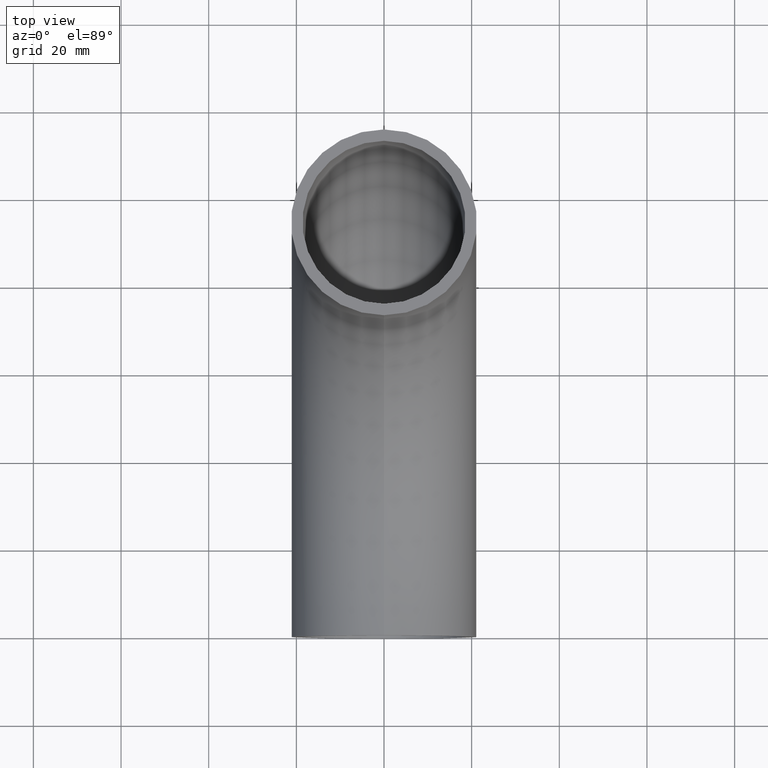
[diagram: clean part render]
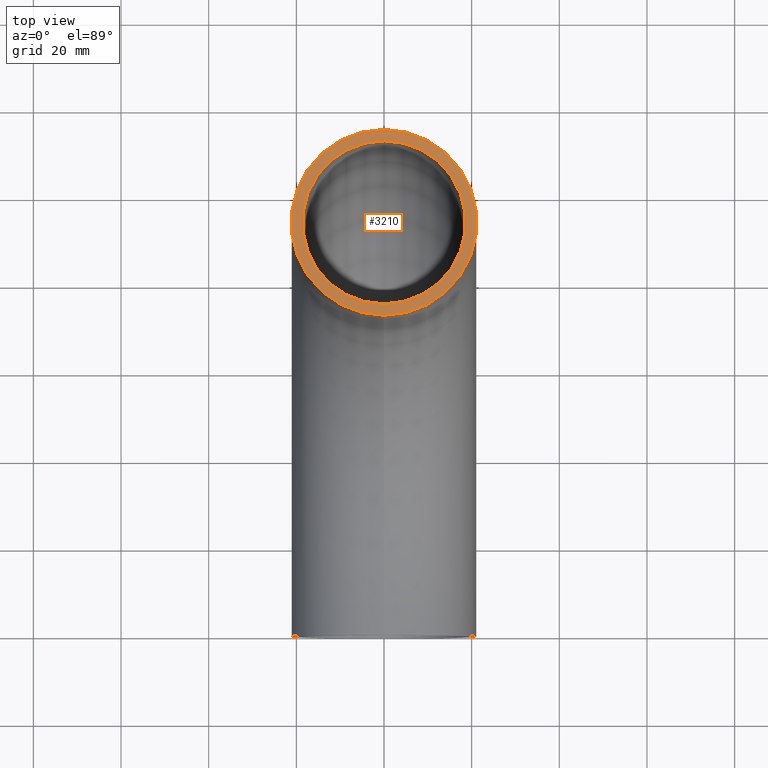
[diagram: same view with one face highlighted and labeled with its STEP entity id]
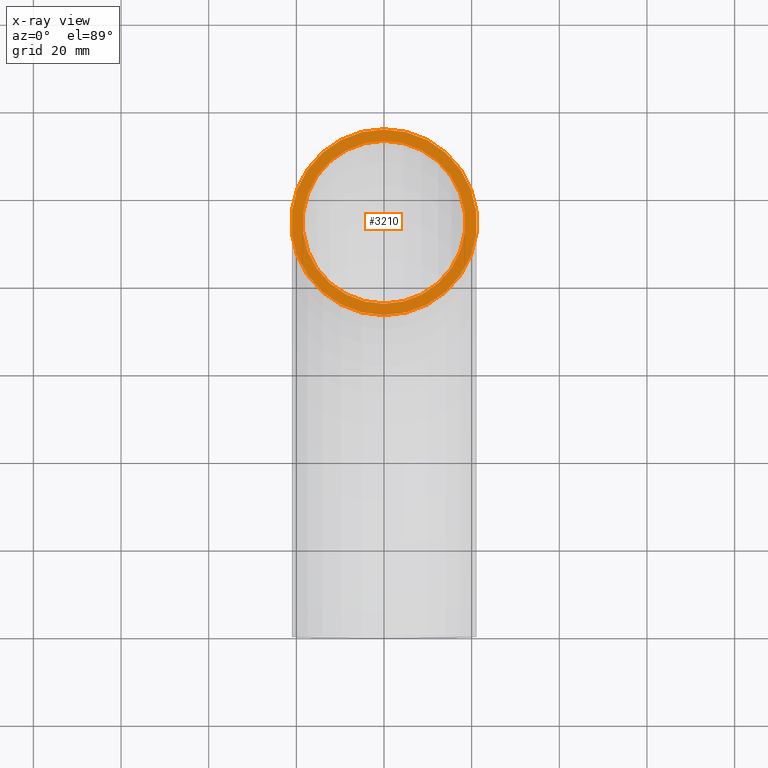
[diagram: x-ray of the same camera — body ghosted, the highlighted face saturated]
A machine part, top view. The second image highlights one B-rep face of the part: STEP entity #3210.
The next image is the same camera in x-ray: the body ghosted, the highlighted face saturated — about 0% of this face is hidden behind the body in this view.
In plain terms, the highlighted planar face has unit normal (0, 0, 1).
Its self-contained STEP definition (entity closure, byte-faithful):
#253 = FACE_BOUND ( 'NONE', #5724, .T. ) ;
#337 = CARTESIAN_POINT ( 'NONE',  ( 0.000000000000000000, 71.79999999999999716, -4.396482008938998287E-15 ) ) ;
#376 = CARTESIAN_POINT ( 'NONE',  ( 0.000000000000000000, 74.39999999999999147, -4.555686092828153507E-15 ) ) ;
#543 = DIRECTION ( 'NONE',  ( 0.000000000000000000, -1.000000000000000000, 6.123233995736766036E-17 ) ) ;
#1233 = CIRCLE ( 'NONE', #8471, 21.19999999999999574 ) ;
#1475 = DIRECTION ( 'NONE',  ( 0.000000000000000000, 6.123233995736766036E-17, 1.000000000000000000 ) ) ;
#1772 = ORIENTED_EDGE ( 'NONE', *, *, #4674, .T. ) ;
#2909 = FACE_OUTER_BOUND ( 'NONE', #7409, .T. ) ;
#3210 = ADVANCED_FACE ( 'NONE', ( #253, #2909 ), #10389, .T. ) ;
#4185 = CARTESIAN_POINT ( 'NONE',  ( 0.000000000000000000, 93.00000000000000000, -5.694607616035192278E-15 ) ) ;
#4674 = EDGE_CURVE ( 'NONE', #9843, #9843, #1233, .T. ) ;
#5019 = CARTESIAN_POINT ( 'NONE',  ( 0.000000000000000000, 93.00000000000000000, -5.694607616035192278E-15 ) ) ;
#5653 = VERTEX_POINT ( 'NONE', #376 ) ;
#5724 = EDGE_LOOP ( 'NONE', ( #9289 ) ) ;
#5842 = EDGE_CURVE ( 'NONE', #5653, #5653, #7080, .T. ) ;
#5878 = DIRECTION ( 'NONE',  ( 0.000000000000000000, -1.000000000000000000, 6.123233995736766036E-17 ) ) ;
#6384 = AXIS2_PLACEMENT_3D ( 'NONE', #4185, #1475, #543 ) ;
#6763 = CARTESIAN_POINT ( 'NONE',  ( 0.000000000000000000, 93.00000000000000000, -5.694607616035192278E-15 ) ) ;
#7080 = CIRCLE ( 'NONE', #9904, 18.60000000000000497 ) ;
#7409 = EDGE_LOOP ( 'NONE', ( #1772 ) ) ;
#8431 = DIRECTION ( 'NONE',  ( 0.000000000000000000, 6.123233995736766036E-17, 1.000000000000000000 ) ) ;
#8471 = AXIS2_PLACEMENT_3D ( 'NONE', #5019, #8431, #8472 ) ;
#8472 = DIRECTION ( 'NONE',  ( 0.000000000000000000, -1.000000000000000000, 6.123233995736764803E-17 ) ) ;
#8515 = DIRECTION ( 'NONE',  ( 0.000000000000000000, 6.123233995736766036E-17, 1.000000000000000000 ) ) ;
#9289 = ORIENTED_EDGE ( 'NONE', *, *, #5842, .F. ) ;
#9843 = VERTEX_POINT ( 'NONE', #337 ) ;
#9904 = AXIS2_PLACEMENT_3D ( 'NONE', #6763, #8515, #5878 ) ;
#10389 = PLANE ( 'NONE',  #6384 ) ;